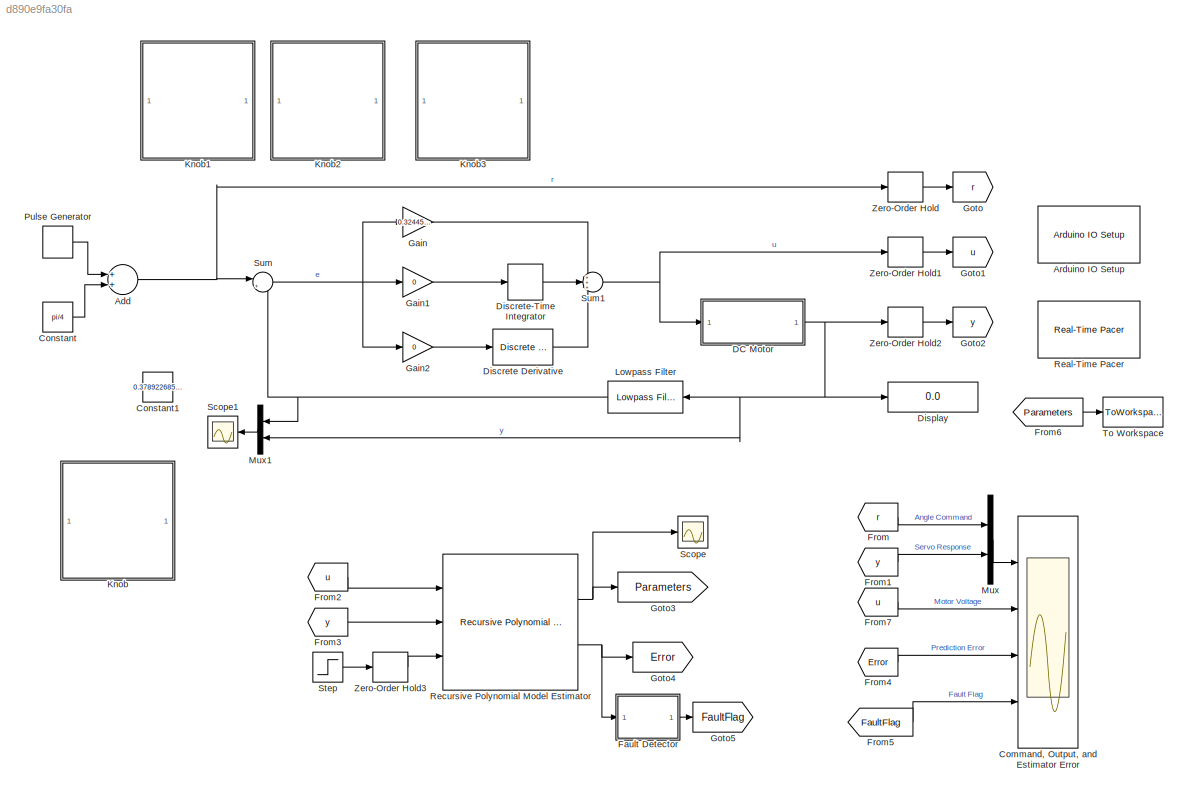
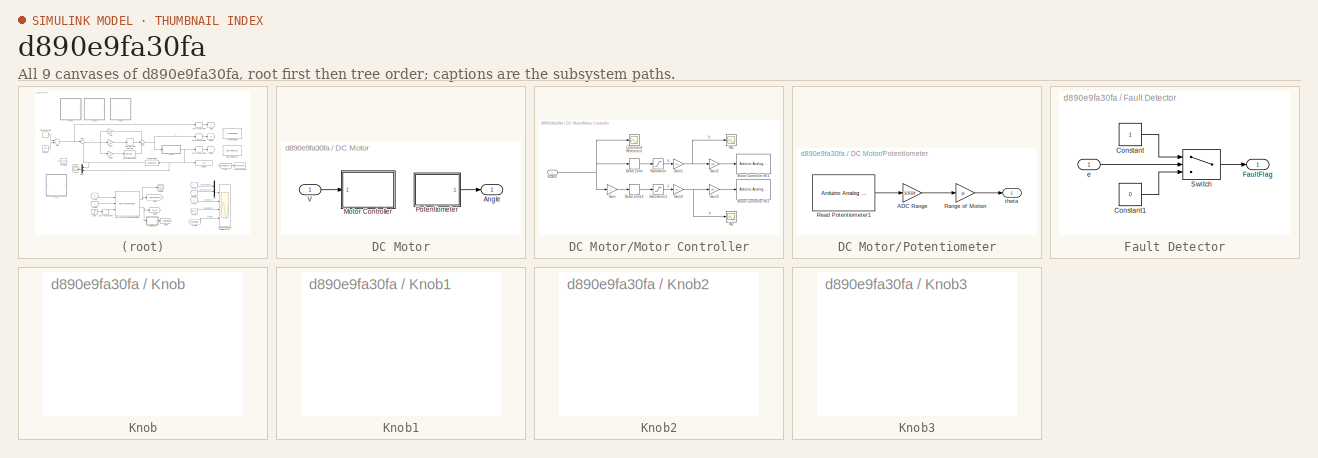
[diagram: thumbnail index - all 9 canvases of the model, root first then tree order]
MODEL slx_d890e9fa30fa
KIND model
CONFIG AbsTol = auto
CONFIG FixedStep = auto
CONFIG MaxStep = auto
CONFIG MinStep = auto
CONFIG RelTol = 1e-3
CONFIG SampleTimeConstraint = Unconstrained
CONFIG Solver = FixedStepDiscrete
CONFIG SolverMode = Auto
CONFIG SolverName = FixedStepDiscrete
CONFIG StartTime = 0.0
CONFIG StopTime = 10
BLOCK [Sum] Add
  InputSameDT = off
  OutDataTypeStr = Inherit: Inherit via internal rule
  Ports = [2, 1]
  SaturateOnIntegerOverflow = off
BLOCK [Reference] Arduino IO Setup  REF=arduino_io_lib/Arduino IO Setup
  Ports = []
  Priority = 3
  SourceBlock = arduino_io_lib/Arduino IO Setup
  SourceType = Arduino IO Setup
BLOCK [Scope] Command, Output, and Estimator Error
  NumInputPorts = 4
  Ports = [4]
  ScopeSpecificationString = Simulink.scopes.TimeScopeBlockCfg('CurrentConfiguration', extmgr.ConfigurationSet(extmgr.Configuration('Core','General UI',true),extmgr.Configuration('Core','Source UI',true),extmgr.Configuration('Sources','WiredSimulink',true,'DataLoggingSaveFormat','StructureWithTime','DataLoggingDecimation','1','DataLoggingDecimateData',true),extmgr.Configuration('Visuals','Time Domain',true,'SerializedDisplays...<+3650ch>
BLOCK [Constant] Constant
  Value = pi/4
BLOCK [Constant] Constant1
  Value = 0.3789226855616837
BLOCK [SubSystem] DC Motor
  Ports = [1, 1]
  RequestExecContextInheritance = off
  Variant = off
BLOCK [Outport] DC Motor/Angle
  IconDisplay = Port number
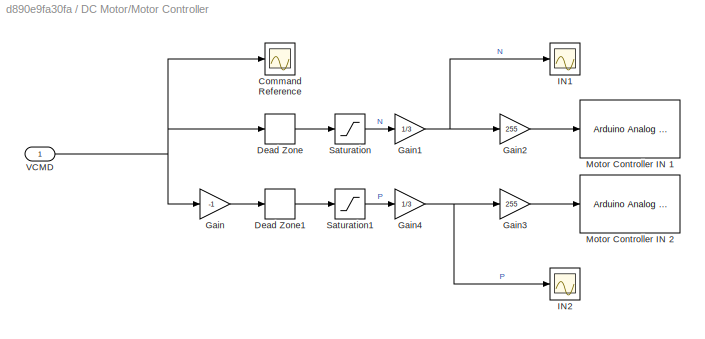
BLOCK [SubSystem] DC Motor/Motor Controller
  Ports = [1]
  RequestExecContextInheritance = off
  Variant = off
BLOCK [Scope] DC Motor/Motor Controller/Command Reference
  Ports = [1]
  ScopeSpecificationString = Simulink.scopes.TimeScopeBlockCfg('CurrentConfiguration', extmgr.ConfigurationSet(extmgr.Configuration('Core','General UI',true),extmgr.Configuration('Core','Source UI',true),extmgr.Configuration('Sources','WiredSimulink',true,'DataLoggingVariableName','ScopeData3'),extmgr.Configuration('Visuals','Time Domain',true,'SerializedDisplays',{struct('MinYLimReal','-1.07981','MaxYLimReal','1.25257','YLab...<+1390ch>
BLOCK [DeadZone] DC Motor/Motor Controller/Dead Zone
  LowerValue = -inf
  UpperValue = 0
BLOCK [DeadZone] DC Motor/Motor Controller/Dead Zone1
  LowerValue = -inf
  UpperValue = 0
BLOCK [Gain] DC Motor/Motor Controller/Gain
  Gain = -1
  OutDataTypeStr = Inherit: Inherit via internal rule
  ParamDataTypeStr = Inherit: Inherit via internal rule
  SaturateOnIntegerOverflow = off
BLOCK [Gain] DC Motor/Motor Controller/Gain1
  Gain = 1/3
  OutDataTypeStr = Inherit: Inherit via internal rule
  ParamDataTypeStr = Inherit: Inherit via internal rule
  SaturateOnIntegerOverflow = off
BLOCK [Gain] DC Motor/Motor Controller/Gain2
  Gain = 255
  OutDataTypeStr = Inherit: Inherit via internal rule
  ParamDataTypeStr = Inherit: Inherit via internal rule
  SaturateOnIntegerOverflow = off
BLOCK [Gain] DC Motor/Motor Controller/Gain3
  Gain = 255
  OutDataTypeStr = Inherit: Inherit via internal rule
  ParamDataTypeStr = Inherit: Inherit via internal rule
  SaturateOnIntegerOverflow = off
BLOCK [Gain] DC Motor/Motor Controller/Gain4
  Gain = 1/3
  OutDataTypeStr = Inherit: Inherit via internal rule
  ParamDataTypeStr = Inherit: Inherit via internal rule
  SaturateOnIntegerOverflow = off
BLOCK [Scope] DC Motor/Motor Controller/IN1
  Ports = [1]
  ScopeSpecificationString = Simulink.scopes.TimeScopeBlockCfg('CurrentConfiguration', extmgr.ConfigurationSet(extmgr.Configuration('Core','General UI',true),extmgr.Configuration('Core','Source UI',true),extmgr.Configuration('Sources','WiredSimulink',true,'DataLoggingVariableName','ScopeData1'),extmgr.Configuration('Visuals','Time Domain',true,'SerializedDisplays',{struct('MinYLimReal','-0.04247','MaxYLimReal','0.38225','YLab...<+1360ch>
BLOCK [Scope] DC Motor/Motor Controller/IN2
  Ports = [1]
  ScopeSpecificationString = Simulink.scopes.TimeScopeBlockCfg('CurrentConfiguration', extmgr.ConfigurationSet(extmgr.Configuration('Core','General UI',true),extmgr.Configuration('Core','Source UI',true),extmgr.Configuration('Sources','WiredSimulink',true,'DataLoggingVariableName','ScopeData2'),extmgr.Configuration('Visuals','Time Domain',true,'SerializedDisplays',{struct('MinYLimReal','-0.03527','MaxYLimReal','0.31747','YLab...<+1390ch>
BLOCK [Reference] DC Motor/Motor Controller/Motor Controller IN 1  REF=arduino_io_lib/Arduino Analog Write
  Ports = [1]
  SourceBlock = arduino_io_lib/Arduino Analog Write
  SourceType = Arduino IO analog Write (PWM)
BLOCK [Reference] DC Motor/Motor Controller/Motor Controller IN 2   REF=arduino_io_lib/Arduino Analog Write
  Ports = [1]
  SourceBlock = arduino_io_lib/Arduino Analog Write
  SourceType = Arduino IO analog Write (PWM)
BLOCK [Saturate] DC Motor/Motor Controller/Saturation
  InputPortMap = u0
  LowerLimit = 0
  Ports = [1, 1]
  UpperLimit = 3
BLOCK [Saturate] DC Motor/Motor Controller/Saturation1
  InputPortMap = u0
  LowerLimit = 0
  Ports = [1, 1]
  UpperLimit = 3
BLOCK [Inport] DC Motor/Motor Controller/VCMD
  IconDisplay = Port number
BLOCK [SubSystem] DC Motor/Potentiometer
  Ports = [0, 1]
  RequestExecContextInheritance = off
  Variant = off
BLOCK [Gain] DC Motor/Potentiometer/ADC Range
  Gain = 1/1024
  OutDataTypeStr = Inherit: Inherit via internal rule
  ParamDataTypeStr = Inherit: Inherit via internal rule
  SaturateOnIntegerOverflow = off
BLOCK [Gain] DC Motor/Potentiometer/Range of Motion
  Gain = pi
  OutDataTypeStr = Inherit: Inherit via internal rule
  ParamDataTypeStr = Inherit: Inherit via internal rule
  SaturateOnIntegerOverflow = off
BLOCK [Reference] DC Motor/Potentiometer/Read Potentiometer1  REF=arduino_io_lib/Arduino Analog Read
  Ports = [0, 1]
  SourceBlock = arduino_io_lib/Arduino Analog Read
  SourceType = Arduino IO Analog Read
BLOCK [Outport] DC Motor/Potentiometer/theta
  IconDisplay = Port number
BLOCK [Inport] DC Motor/V
  IconDisplay = Port number
BLOCK [Reference] Discrete Derivative  REF=simulink/Discrete/Discrete Derivative
  Ports = [1, 1]
  SourceBlock = simulink/Discrete/Discrete Derivative
  SourceType = Discrete Derivative
BLOCK [DiscreteIntegrator] Discrete-Time Integrator
  ICPrevOutput = DiscIntNeverNeededParam
  ICPrevScaledInput = DiscIntNeverNeededParam
  InitialConditionSetting = State (most efficient)
  Ports = [1, 1]
BLOCK [Display] Display
  Decimation = 1
  Ports = [1]
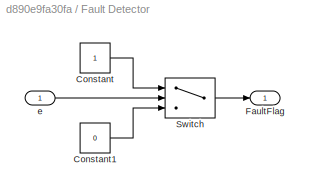
BLOCK [SubSystem] Fault Detector
  Ports = [1, 1]
  RequestExecContextInheritance = off
  Variant = off
BLOCK [Constant] Fault Detector/Constant
BLOCK [Constant] Fault Detector/Constant1
  Value = 0
BLOCK [Outport] Fault Detector/FaultFlag
  IconDisplay = Port number
BLOCK [Switch] Fault Detector/Switch
  Criteria = u2 > Threshold
  InputSameDT = off
  SaturateOnIntegerOverflow = off
  Threshold = .2
BLOCK [Inport] Fault Detector/e
  IconDisplay = Port number
BLOCK [From] From
  GotoTag = r
BLOCK [From] From1
  GotoTag = y
BLOCK [From] From2
  GotoTag = u
BLOCK [From] From3
  GotoTag = y
BLOCK [From] From4
  GotoTag = Error
BLOCK [From] From5
  GotoTag = FaultFlag
BLOCK [From] From6
  GotoTag = Parameters
BLOCK [From] From7
  GotoTag = u
BLOCK [Gain] Gain
  Gain = 0.3244518788655599
  OutDataTypeStr = Inherit: Inherit via internal rule
  ParamDataTypeStr = Inherit: Inherit via internal rule
  SaturateOnIntegerOverflow = off
BLOCK [Gain] Gain1
  Gain = 0
  OutDataTypeStr = Inherit: Inherit via internal rule
  ParamDataTypeStr = Inherit: Inherit via internal rule
  SaturateOnIntegerOverflow = off
BLOCK [Gain] Gain2
  Gain = 0
  OutDataTypeStr = Inherit: Inherit via internal rule
  ParamDataTypeStr = Inherit: Inherit via internal rule
  SaturateOnIntegerOverflow = off
BLOCK [Goto] Goto
  GotoTag = r
BLOCK [Goto] Goto1
  GotoTag = u
BLOCK [Goto] Goto2
  GotoTag = y
BLOCK [Goto] Goto3
  GotoTag = Parameters
BLOCK [Goto] Goto4
  GotoTag = Error
BLOCK [Goto] Goto5
  GotoTag = FaultFlag
BLOCK [SubSystem] Knob
  DialogController = hmiCreateDDGDialog
  IsWebBlock = on
  MaskHideContents = on
  Ports = []
  RequestExecContextInheritance = off
  Variant = off
BLOCK [SubSystem] Knob1
  DialogController = hmiCreateDDGDialog
  IsWebBlock = on
  MaskHideContents = on
  Ports = []
  RequestExecContextInheritance = off
  Variant = off
BLOCK [SubSystem] Knob2
  DialogController = hmiCreateDDGDialog
  IsWebBlock = on
  MaskHideContents = on
  Ports = []
  RequestExecContextInheritance = off
  Variant = off
BLOCK [SubSystem] Knob3
  DialogController = hmiCreateDDGDialog
  IsWebBlock = on
  MaskHideContents = on
  Ports = []
  RequestExecContextInheritance = off
  Variant = off
BLOCK [Reference] Lowpass Filter  REF=dspfdesign/Lowpass Filter
  Ports = [1, 1]
  SourceBlock = dspfdesign/Lowpass Filter
  SourceType = dsp.LowpassFilter
BLOCK [Mux] Mux
  DisplayOption = bar
  Inputs = 2
  Ports = [2, 1]
BLOCK [Mux] Mux1
  DisplayOption = bar
  Inputs = 2
  Ports = [2, 1]
BLOCK [DiscretePulseGenerator] Pulse Generator
  Amplitude = pi/2
  Period = 8
  Ports = [0, 1]
  PulseType = Time based
  PulseWidth = 50
BLOCK [Reference] Real-Time Pacer  REF=arduino_io_lib/Real-Time Pacer
  Ports = []
  SourceBlock = arduino_io_lib/Real-Time Pacer
  SourceType = RealTime_Pacer
BLOCK [Reference] Recursive Polynomial Model Estimator  REF=slident/Estimators/Recursive Polynomial Model Estimator  (lib defined in mdl_f7d4911ca73a)
  Ports = [3, 2]
  SourceBlock = slident/Estimators/Recursive Polynomial Model Estimator
  SourceType = idEstimatorsPolyModel
BLOCK [Scope] Scope
  Ports = [1]
  ScopeSpecificationString = Simulink.scopes.TimeScopeBlockCfg('CurrentConfiguration', extmgr.ConfigurationSet(extmgr.Configuration('Core','General UI',true),extmgr.Configuration('Core','Source UI',true),extmgr.Configuration('Sources','WiredSimulink',true,'DataLoggingVariableName','ScopeData1'),extmgr.Configuration('Visuals','Time Domain',true,'SerializedDisplays',{struct('MinYLimReal','-1.8959','MaxYLimReal','1.32177','YLabe...<+1813ch>
BLOCK [Scope] Scope1
  Ports = [1]
  ScopeSpecificationString = Simulink.scopes.TimeScopeBlockCfg('CurrentConfiguration', extmgr.ConfigurationSet(extmgr.Configuration('Core','General UI',true),extmgr.Configuration('Core','Source UI',true),extmgr.Configuration('Sources','WiredSimulink',true,'DataLoggingVariableName','ScopeData2'),extmgr.Configuration('Visuals','Time Domain',true,'SerializedDisplays',{struct('MinYLimReal','2.80216','MaxYLimReal','3.1759','YLabel...<+1422ch>
BLOCK [Step] Step
  After = 0
  Before = 1
  SampleTime = 0
  Time = 15
BLOCK [Sum] Sum
  IconShape = round
  InputSameDT = off
  Inputs = |+-
  OutDataTypeStr = Inherit: Inherit via internal rule
  Ports = [2, 1]
  SaturateOnIntegerOverflow = off
BLOCK [Sum] Sum1
  IconShape = round
  InputSameDT = off
  Inputs = +++
  OutDataTypeStr = Inherit: Inherit via internal rule
  Ports = [3, 1]
  SaturateOnIntegerOverflow = off
BLOCK [ToWorkspace] To Workspace
  FixptAsFi = on
  MaxDataPoints = inf
  Ports = [1]
  SampleTime = -1
  Save2DSignal = 3-D array (concatenate along third dimension)
  SaveFormat = Timeseries
  VariableName = simout
BLOCK [ZeroOrderHold] Zero-Order Hold
  SampleTime = 1/200
BLOCK [ZeroOrderHold] Zero-Order Hold1
  SampleTime = 1/200
BLOCK [ZeroOrderHold] Zero-Order Hold2
  SampleTime = 1/200
BLOCK [ZeroOrderHold] Zero-Order Hold3
  SampleTime = 1/200
NET Add:1 -> Sum:1, Zero-Order Hold:1
LINE Constant:1 -> Add:2
LINE DC Motor/Motor Controller/Dead Zone1:1 -> DC Motor/Motor Controller/Saturation1:1
LINE DC Motor/Motor Controller/Dead Zone:1 -> DC Motor/Motor Controller/Saturation:1
NET DC Motor/Motor Controller/Gain1:1 -> DC Motor/Motor Controller/Gain2:1, DC Motor/Motor Controller/IN1:1
LINE DC Motor/Motor Controller/Gain2:1 -> DC Motor/Motor Controller/Motor Controller IN 1:1
LINE DC Motor/Motor Controller/Gain3:1 -> DC Motor/Motor Controller/Motor Controller IN 2 :1
NET DC Motor/Motor Controller/Gain4:1 -> DC Motor/Motor Controller/Gain3:1, DC Motor/Motor Controller/IN2:1
LINE DC Motor/Motor Controller/Gain:1 -> DC Motor/Motor Controller/Dead Zone1:1
LINE DC Motor/Motor Controller/Saturation1:1 -> DC Motor/Motor Controller/Gain4:1
LINE DC Motor/Motor Controller/Saturation:1 -> DC Motor/Motor Controller/Gain1:1
NET DC Motor/Motor Controller/VCMD:1 -> DC Motor/Motor Controller/Command Reference:1, DC Motor/Motor Controller/Dead Zone:1, DC Motor/Motor Controller/Gain:1
LINE DC Motor/Potentiometer/ADC Range:1 -> DC Motor/Potentiometer/Range of Motion:1
LINE DC Motor/Potentiometer/Range of Motion:1 -> DC Motor/Potentiometer/theta:1
LINE DC Motor/Potentiometer/Read Potentiometer1:1 -> DC Motor/Potentiometer/ADC Range:1
LINE DC Motor/Potentiometer:1 -> DC Motor/Angle:1
LINE DC Motor/V:1 -> DC Motor/Motor Controller:1
NET DC Motor:1 -> Display:1, Lowpass Filter:1, Mux1:2, Zero-Order Hold2:1
LINE Discrete Derivative:1 -> Sum1:3
LINE Discrete-Time Integrator:1 -> Sum1:2
LINE Fault Detector/Constant1:1 -> Fault Detector/Switch:3
LINE Fault Detector/Constant:1 -> Fault Detector/Switch:1
LINE Fault Detector/Switch:1 -> Fault Detector/FaultFlag:1
LINE Fault Detector/e:1 -> Fault Detector/Switch:2
LINE Fault Detector:1 -> Goto5:1
LINE From1:1 -> Mux:2
LINE From2:1 -> Recursive Polynomial Model Estimator:1
LINE From3:1 -> Recursive Polynomial Model Estimator:2
LINE From4:1 -> Command, Output, and Estimator Error:3
LINE From5:1 -> Command, Output, and Estimator Error:4
LINE From6:1 -> To Workspace:1
LINE From7:1 -> Command, Output, and Estimator Error:2
LINE From:1 -> Mux:1
LINE Gain1:1 -> Discrete-Time Integrator:1
LINE Gain2:1 -> Discrete Derivative:1
LINE Gain:1 -> Sum1:1
NET Lowpass Filter:1 -> Mux1:1, Sum:2
LINE Mux1:1 -> Scope1:1
LINE Mux:1 -> Command, Output, and Estimator Error:1
LINE Pulse Generator:1 -> Add:1
NET Recursive Polynomial Model Estimator:1 -> Goto3:1, Scope:1
NET Recursive Polynomial Model Estimator:2 -> Fault Detector:1, Goto4:1
LINE Step:1 -> Zero-Order Hold3:1
NET Sum1:1 -> DC Motor:1, Zero-Order Hold1:1
NET Sum:1 -> Gain1:1, Gain2:1, Gain:1
LINE Zero-Order Hold1:1 -> Goto1:1
LINE Zero-Order Hold2:1 -> Goto2:1
LINE Zero-Order Hold3:1 -> Recursive Polynomial Model Estimator:3
LINE Zero-Order Hold:1 -> Goto:1
note: NET lines group one-source signal fan-out (src -> all destinations, sorted); 1:1 wires keep LINE
